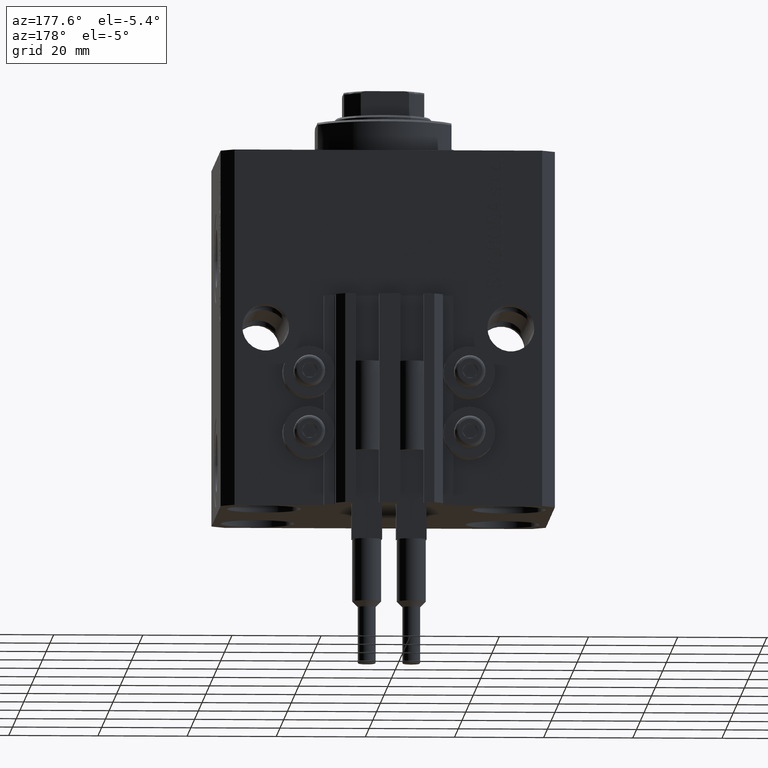
[diagram: clean part render]
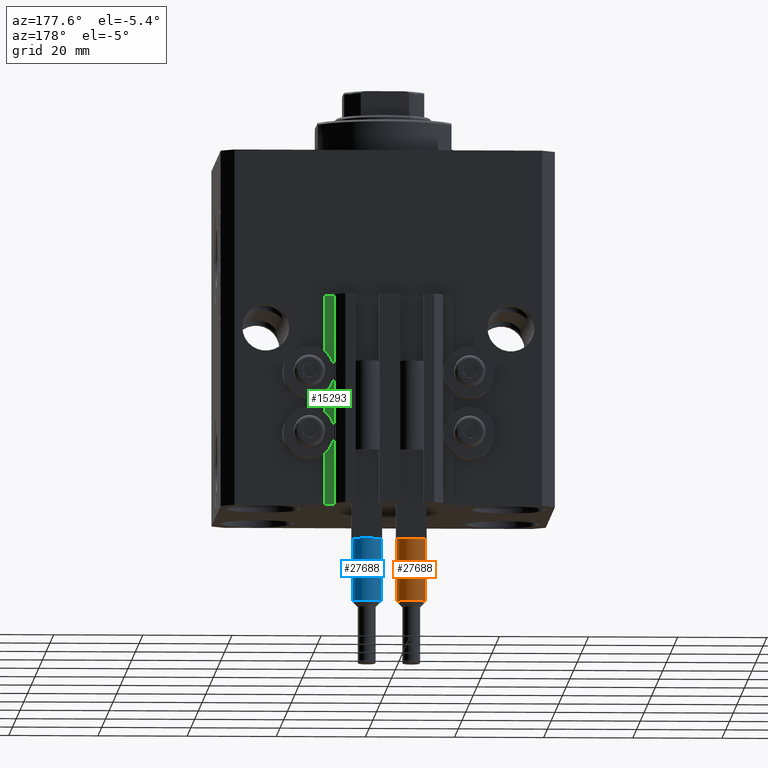
[diagram: same view with three faces highlighted in distinct colors, each labeled with its STEP entity id]
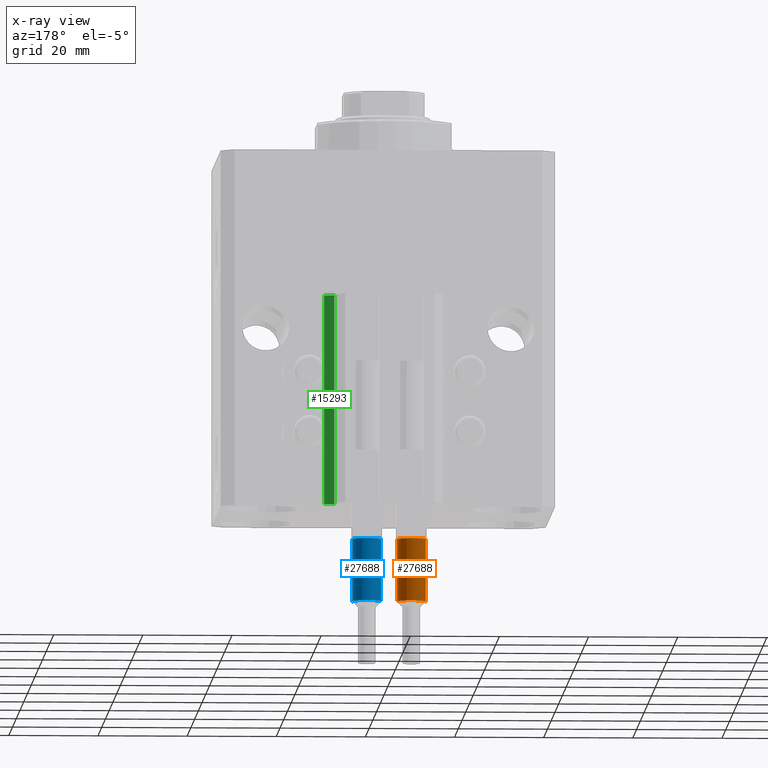
[diagram: x-ray of the same camera — body ghosted, the three highlighted faces saturated]
A machine part, auxiliary view with three faces highlighted in distinct colors.
The next image is the same camera in x-ray (body ghosted, the three faces saturated) — at least one of them is partly hidden behind the body in this view.
Their STEP definitions:

[orange] entity #27688 — the highlighted cylindrical surface (edge-blend (fillet) strip) has radius 3.25 mm, axis along (0, 0, 1).
#172 = CARTESIAN_POINT ( 'NONE',  ( -3.250000000000000444, 0.000000000000000000, 40.00000000000000000 ) ) ;
#265 = CARTESIAN_POINT ( 'NONE',  ( 3.250000000000000444, 3.980102097228898231E-16, 40.00000000000000000 ) ) ;
#772 = CYLINDRICAL_SURFACE ( 'NONE', #31224, 3.250000000000000444 ) ;
#802 = CARTESIAN_POINT ( 'NONE',  ( 2.883140648667699146, 1.500000000000000000, 40.00000000000000000 ) ) ;
#1408 = EDGE_CURVE ( 'NONE', #2200, #44863, #17954, .T. ) ;
#2200 = VERTEX_POINT ( 'NONE', #265 ) ;
#2531 = AXIS2_PLACEMENT_3D ( 'NONE', #4186, #11988, #19050 ) ;
#3998 = CARTESIAN_POINT ( 'NONE',  ( -2.883140648667699146, 1.500000000000000000, 40.00000000000000000 ) ) ;
#4186 = CARTESIAN_POINT ( 'NONE',  ( 0.000000000000000000, 0.000000000000000000, 40.00000000000000000 ) ) ;
#5164 = EDGE_LOOP ( 'NONE', ( #14851, #40022, #25588, #7613, #33574, #21150 ) ) ;
#5362 = LINE ( 'NONE', #45552, #16782 ) ;
#5656 = CARTESIAN_POINT ( 'NONE',  ( 0.000000000000000000, 0.000000000000000000, 40.00000000000000000 ) ) ;
#7613 = ORIENTED_EDGE ( 'NONE', *, *, #44090, .T. ) ;
#8362 = VERTEX_POINT ( 'NONE', #172 ) ;
#11988 = DIRECTION ( 'NONE',  ( 0.000000000000000000, 0.000000000000000000, 1.000000000000000000 ) ) ;
#13240 = VERTEX_POINT ( 'NONE', #15555 ) ;
#13715 = DIRECTION ( 'NONE',  ( 0.000000000000000000, 0.000000000000000000, 1.000000000000000000 ) ) ;
#14851 = ORIENTED_EDGE ( 'NONE', *, *, #17099, .T. ) ;
#15397 = FACE_OUTER_BOUND ( 'NONE', #5164, .T. ) ;
#15555 = CARTESIAN_POINT ( 'NONE',  ( 3.250000000000000444, 3.980102097228898231E-16, 53.99999999999998579 ) ) ;
#16782 = VECTOR ( 'NONE', #23149, 1000.000000000000000 ) ;
#16994 = AXIS2_PLACEMENT_3D ( 'NONE', #26528, #26046, #22387 ) ;
#17099 = EDGE_CURVE ( 'NONE', #23270, #13240, #37971, .T. ) ;
#17954 = CIRCLE ( 'NONE', #24195, 3.250000000000000444 ) ;
#19050 = DIRECTION ( 'NONE',  ( 1.000000000000000000, 0.000000000000000000, 0.000000000000000000 ) ) ;
#20041 = DIRECTION ( 'NONE',  ( 0.000000000000000000, 0.000000000000000000, 1.000000000000000000 ) ) ;
#20718 = CIRCLE ( 'NONE', #21473, 3.250000000000000444 ) ;
#20743 = CARTESIAN_POINT ( 'NONE',  ( 3.250000000000000444, 3.980102097228898231E-16, 56.00000000000000000 ) ) ;
#21150 = ORIENTED_EDGE ( 'NONE', *, *, #42428, .F. ) ;
#21473 = AXIS2_PLACEMENT_3D ( 'NONE', #5656, #20041, #39259 ) ;
#22387 = DIRECTION ( 'NONE',  ( 1.000000000000000000, 0.000000000000000000, 0.000000000000000000 ) ) ;
#23149 = DIRECTION ( 'NONE',  ( -0.000000000000000000, -0.000000000000000000, -1.000000000000000000 ) ) ;
#23180 = DIRECTION ( 'NONE',  ( -0.000000000000000000, -0.000000000000000000, -1.000000000000000000 ) ) ;
#23270 = VERTEX_POINT ( 'NONE', #32063 ) ;
#24195 = AXIS2_PLACEMENT_3D ( 'NONE', #24925, #13715, #25158 ) ;
#24925 = CARTESIAN_POINT ( 'NONE',  ( 0.000000000000000000, 0.000000000000000000, 40.00000000000000000 ) ) ;
#25158 = DIRECTION ( 'NONE',  ( 1.000000000000000000, 0.000000000000000000, 0.000000000000000000 ) ) ;
#25588 = ORIENTED_EDGE ( 'NONE', *, *, #1408, .T. ) ;
#26046 = DIRECTION ( 'NONE',  ( 0.000000000000000000, 0.000000000000000000, -1.000000000000000000 ) ) ;
#26395 = VERTEX_POINT ( 'NONE', #3998 ) ;
#26528 = CARTESIAN_POINT ( 'NONE',  ( 0.000000000000000000, 0.000000000000000000, 53.99999999999998579 ) ) ;
#27688 = ADVANCED_FACE ( 'NONE', ( #15397 ), #772, .T. ) ;
#27755 = EDGE_CURVE ( 'NONE', #13240, #2200, #45583, .T. ) ;
#30249 = DIRECTION ( 'NONE',  ( -1.000000000000000000, 0.000000000000000000, 0.000000000000000000 ) ) ;
#31224 = AXIS2_PLACEMENT_3D ( 'NONE', #44610, #23180, #30249 ) ;
#32045 = EDGE_CURVE ( 'NONE', #26395, #8362, #41420, .T. ) ;
#32063 = CARTESIAN_POINT ( 'NONE',  ( -3.250000000000000444, 0.000000000000000000, 53.99999999999998579 ) ) ;
#33574 = ORIENTED_EDGE ( 'NONE', *, *, #32045, .T. ) ;
#37971 = CIRCLE ( 'NONE', #16994, 3.250000000000000444 ) ;
#39259 = DIRECTION ( 'NONE',  ( 1.000000000000000000, 0.000000000000000000, 0.000000000000000000 ) ) ;
#40022 = ORIENTED_EDGE ( 'NONE', *, *, #27755, .T. ) ;
#41332 = VECTOR ( 'NONE', #45822, 1000.000000000000000 ) ;
#41420 = CIRCLE ( 'NONE', #2531, 3.250000000000000444 ) ;
#42428 = EDGE_CURVE ( 'NONE', #23270, #8362, #5362, .T. ) ;
#44090 = EDGE_CURVE ( 'NONE', #44863, #26395, #20718, .T. ) ;
#44610 = CARTESIAN_POINT ( 'NONE',  ( 0.000000000000000000, 0.000000000000000000, 56.00000000000000000 ) ) ;
#44863 = VERTEX_POINT ( 'NONE', #802 ) ;
#45552 = CARTESIAN_POINT ( 'NONE',  ( -3.250000000000000444, 0.000000000000000000, 56.00000000000000000 ) ) ;
#45583 = LINE ( 'NONE', #20743, #41332 ) ;
#45822 = DIRECTION ( 'NONE',  ( -0.000000000000000000, -0.000000000000000000, -1.000000000000000000 ) ) ;

[blue] entity #27688 — the highlighted cylindrical surface (edge-blend (fillet) strip) has radius 3.25 mm, axis along (0, 0, 1).
#172 = CARTESIAN_POINT ( 'NONE',  ( -3.250000000000000444, 0.000000000000000000, 40.00000000000000000 ) ) ;
#265 = CARTESIAN_POINT ( 'NONE',  ( 3.250000000000000444, 3.980102097228898231E-16, 40.00000000000000000 ) ) ;
#772 = CYLINDRICAL_SURFACE ( 'NONE', #31224, 3.250000000000000444 ) ;
#802 = CARTESIAN_POINT ( 'NONE',  ( 2.883140648667699146, 1.500000000000000000, 40.00000000000000000 ) ) ;
#1408 = EDGE_CURVE ( 'NONE', #2200, #44863, #17954, .T. ) ;
#2200 = VERTEX_POINT ( 'NONE', #265 ) ;
#2531 = AXIS2_PLACEMENT_3D ( 'NONE', #4186, #11988, #19050 ) ;
#3998 = CARTESIAN_POINT ( 'NONE',  ( -2.883140648667699146, 1.500000000000000000, 40.00000000000000000 ) ) ;
#4186 = CARTESIAN_POINT ( 'NONE',  ( 0.000000000000000000, 0.000000000000000000, 40.00000000000000000 ) ) ;
#5164 = EDGE_LOOP ( 'NONE', ( #14851, #40022, #25588, #7613, #33574, #21150 ) ) ;
#5362 = LINE ( 'NONE', #45552, #16782 ) ;
#5656 = CARTESIAN_POINT ( 'NONE',  ( 0.000000000000000000, 0.000000000000000000, 40.00000000000000000 ) ) ;
#7613 = ORIENTED_EDGE ( 'NONE', *, *, #44090, .T. ) ;
#8362 = VERTEX_POINT ( 'NONE', #172 ) ;
#11988 = DIRECTION ( 'NONE',  ( 0.000000000000000000, 0.000000000000000000, 1.000000000000000000 ) ) ;
#13240 = VERTEX_POINT ( 'NONE', #15555 ) ;
#13715 = DIRECTION ( 'NONE',  ( 0.000000000000000000, 0.000000000000000000, 1.000000000000000000 ) ) ;
#14851 = ORIENTED_EDGE ( 'NONE', *, *, #17099, .T. ) ;
#15397 = FACE_OUTER_BOUND ( 'NONE', #5164, .T. ) ;
#15555 = CARTESIAN_POINT ( 'NONE',  ( 3.250000000000000444, 3.980102097228898231E-16, 53.99999999999998579 ) ) ;
#16782 = VECTOR ( 'NONE', #23149, 1000.000000000000000 ) ;
#16994 = AXIS2_PLACEMENT_3D ( 'NONE', #26528, #26046, #22387 ) ;
#17099 = EDGE_CURVE ( 'NONE', #23270, #13240, #37971, .T. ) ;
#17954 = CIRCLE ( 'NONE', #24195, 3.250000000000000444 ) ;
#19050 = DIRECTION ( 'NONE',  ( 1.000000000000000000, 0.000000000000000000, 0.000000000000000000 ) ) ;
#20041 = DIRECTION ( 'NONE',  ( 0.000000000000000000, 0.000000000000000000, 1.000000000000000000 ) ) ;
#20718 = CIRCLE ( 'NONE', #21473, 3.250000000000000444 ) ;
#20743 = CARTESIAN_POINT ( 'NONE',  ( 3.250000000000000444, 3.980102097228898231E-16, 56.00000000000000000 ) ) ;
#21150 = ORIENTED_EDGE ( 'NONE', *, *, #42428, .F. ) ;
#21473 = AXIS2_PLACEMENT_3D ( 'NONE', #5656, #20041, #39259 ) ;
#22387 = DIRECTION ( 'NONE',  ( 1.000000000000000000, 0.000000000000000000, 0.000000000000000000 ) ) ;
#23149 = DIRECTION ( 'NONE',  ( -0.000000000000000000, -0.000000000000000000, -1.000000000000000000 ) ) ;
#23180 = DIRECTION ( 'NONE',  ( -0.000000000000000000, -0.000000000000000000, -1.000000000000000000 ) ) ;
#23270 = VERTEX_POINT ( 'NONE', #32063 ) ;
#24195 = AXIS2_PLACEMENT_3D ( 'NONE', #24925, #13715, #25158 ) ;
#24925 = CARTESIAN_POINT ( 'NONE',  ( 0.000000000000000000, 0.000000000000000000, 40.00000000000000000 ) ) ;
#25158 = DIRECTION ( 'NONE',  ( 1.000000000000000000, 0.000000000000000000, 0.000000000000000000 ) ) ;
#25588 = ORIENTED_EDGE ( 'NONE', *, *, #1408, .T. ) ;
#26046 = DIRECTION ( 'NONE',  ( 0.000000000000000000, 0.000000000000000000, -1.000000000000000000 ) ) ;
#26395 = VERTEX_POINT ( 'NONE', #3998 ) ;
#26528 = CARTESIAN_POINT ( 'NONE',  ( 0.000000000000000000, 0.000000000000000000, 53.99999999999998579 ) ) ;
#27688 = ADVANCED_FACE ( 'NONE', ( #15397 ), #772, .T. ) ;
#27755 = EDGE_CURVE ( 'NONE', #13240, #2200, #45583, .T. ) ;
#30249 = DIRECTION ( 'NONE',  ( -1.000000000000000000, 0.000000000000000000, 0.000000000000000000 ) ) ;
#31224 = AXIS2_PLACEMENT_3D ( 'NONE', #44610, #23180, #30249 ) ;
#32045 = EDGE_CURVE ( 'NONE', #26395, #8362, #41420, .T. ) ;
#32063 = CARTESIAN_POINT ( 'NONE',  ( -3.250000000000000444, 0.000000000000000000, 53.99999999999998579 ) ) ;
#33574 = ORIENTED_EDGE ( 'NONE', *, *, #32045, .T. ) ;
#37971 = CIRCLE ( 'NONE', #16994, 3.250000000000000444 ) ;
#39259 = DIRECTION ( 'NONE',  ( 1.000000000000000000, 0.000000000000000000, 0.000000000000000000 ) ) ;
#40022 = ORIENTED_EDGE ( 'NONE', *, *, #27755, .T. ) ;
#41332 = VECTOR ( 'NONE', #45822, 1000.000000000000000 ) ;
#41420 = CIRCLE ( 'NONE', #2531, 3.250000000000000444 ) ;
#42428 = EDGE_CURVE ( 'NONE', #23270, #8362, #5362, .T. ) ;
#44090 = EDGE_CURVE ( 'NONE', #44863, #26395, #20718, .T. ) ;
#44610 = CARTESIAN_POINT ( 'NONE',  ( 0.000000000000000000, 0.000000000000000000, 56.00000000000000000 ) ) ;
#44863 = VERTEX_POINT ( 'NONE', #802 ) ;
#45552 = CARTESIAN_POINT ( 'NONE',  ( -3.250000000000000444, 0.000000000000000000, 56.00000000000000000 ) ) ;
#45583 = LINE ( 'NONE', #20743, #41332 ) ;
#45822 = DIRECTION ( 'NONE',  ( -0.000000000000000000, -0.000000000000000000, -1.000000000000000000 ) ) ;

[green] entity #15293 — the highlighted planar face has unit normal (0, 1, 0).
#396 = DIRECTION ( 'NONE',  ( 0.000000000000000000, 0.000000000000000000, 1.000000000000000000 ) ) ;
#572 = EDGE_CURVE ( 'NONE', #46013, #42908, #1770, .T. ) ;
#885 = ORIENTED_EDGE ( 'NONE', *, *, #572, .T. ) ;
#1770 = LINE ( 'NONE', #31248, #16395 ) ;
#2222 = VERTEX_POINT ( 'NONE', #26345 ) ;
#2608 = ORIENTED_EDGE ( 'NONE', *, *, #22693, .F. ) ;
#3074 = VECTOR ( 'NONE', #45052, 1000.000000000000000 ) ;
#6223 = LINE ( 'NONE', #24746, #8561 ) ;
#7209 = CARTESIAN_POINT ( 'NONE',  ( 12.20000000000000107, 30.00000000000002487, -80.00000000000000000 ) ) ;
#8561 = VECTOR ( 'NONE', #47149, 1000.000000000000000 ) ;
#15293 = ADVANCED_FACE ( 'NONE', ( #22391 ), #29938, .T. ) ;
#15508 = CARTESIAN_POINT ( 'NONE',  ( 14.49999999999999645, 30.00000000000002487, -80.00000000000000000 ) ) ;
#16242 = EDGE_LOOP ( 'NONE', ( #34796, #2608, #885, #29064 ) ) ;
#16395 = VECTOR ( 'NONE', #27845, 1000.000000000000000 ) ;
#16711 = EDGE_CURVE ( 'NONE', #42908, #35640, #33762, .T. ) ;
#18261 = DIRECTION ( 'NONE',  ( 0.000000000000000000, 1.000000000000000000, -0.000000000000000000 ) ) ;
#22391 = FACE_OUTER_BOUND ( 'NONE', #16242, .T. ) ;
#22693 = EDGE_CURVE ( 'NONE', #46013, #2222, #36594, .T. ) ;
#23529 = CARTESIAN_POINT ( 'NONE',  ( 12.20000000000000107, 30.00000000000002487, -80.00000000000000000 ) ) ;
#24631 = EDGE_CURVE ( 'NONE', #2222, #35640, #6223, .T. ) ;
#24746 = CARTESIAN_POINT ( 'NONE',  ( 14.49999999999999645, 30.00000000000002487, -33.00000000000000000 ) ) ;
#26345 = CARTESIAN_POINT ( 'NONE',  ( 14.49999999999999645, 30.00000000000002487, -33.00000000000000000 ) ) ;
#27845 = DIRECTION ( 'NONE',  ( -1.000000000000000000, 0.000000000000000000, 0.000000000000000000 ) ) ;
#29064 = ORIENTED_EDGE ( 'NONE', *, *, #16711, .T. ) ;
#29938 = PLANE ( 'NONE',  #30116 ) ;
#30116 = AXIS2_PLACEMENT_3D ( 'NONE', #44548, #18261, #37480 ) ;
#31248 = CARTESIAN_POINT ( 'NONE',  ( 14.49999999999999645, 30.00000000000002487, -80.00000000000000000 ) ) ;
#33762 = LINE ( 'NONE', #23529, #41090 ) ;
#34796 = ORIENTED_EDGE ( 'NONE', *, *, #24631, .F. ) ;
#35640 = VERTEX_POINT ( 'NONE', #40130 ) ;
#36594 = LINE ( 'NONE', #47811, #3074 ) ;
#37480 = DIRECTION ( 'NONE',  ( 0.000000000000000000, 0.000000000000000000, 1.000000000000000000 ) ) ;
#40130 = CARTESIAN_POINT ( 'NONE',  ( 12.20000000000000107, 30.00000000000002487, -33.00000000000000000 ) ) ;
#41090 = VECTOR ( 'NONE', #396, 1000.000000000000000 ) ;
#42908 = VERTEX_POINT ( 'NONE', #7209 ) ;
#44548 = CARTESIAN_POINT ( 'NONE',  ( 14.49999999999999645, 30.00000000000002487, -80.00000000000000000 ) ) ;
#45052 = DIRECTION ( 'NONE',  ( 0.000000000000000000, 0.000000000000000000, 1.000000000000000000 ) ) ;
#46013 = VERTEX_POINT ( 'NONE', #15508 ) ;
#47149 = DIRECTION ( 'NONE',  ( -1.000000000000000000, 0.000000000000000000, 0.000000000000000000 ) ) ;
#47811 = CARTESIAN_POINT ( 'NONE',  ( 14.49999999999999645, 30.00000000000002487, -80.00000000000000000 ) ) ;